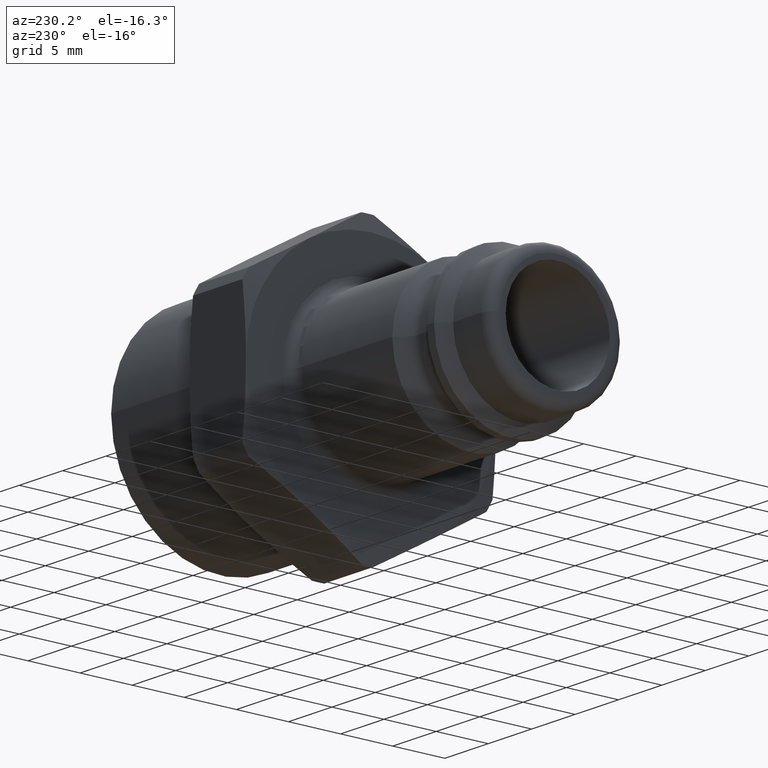
[diagram: clean part render]
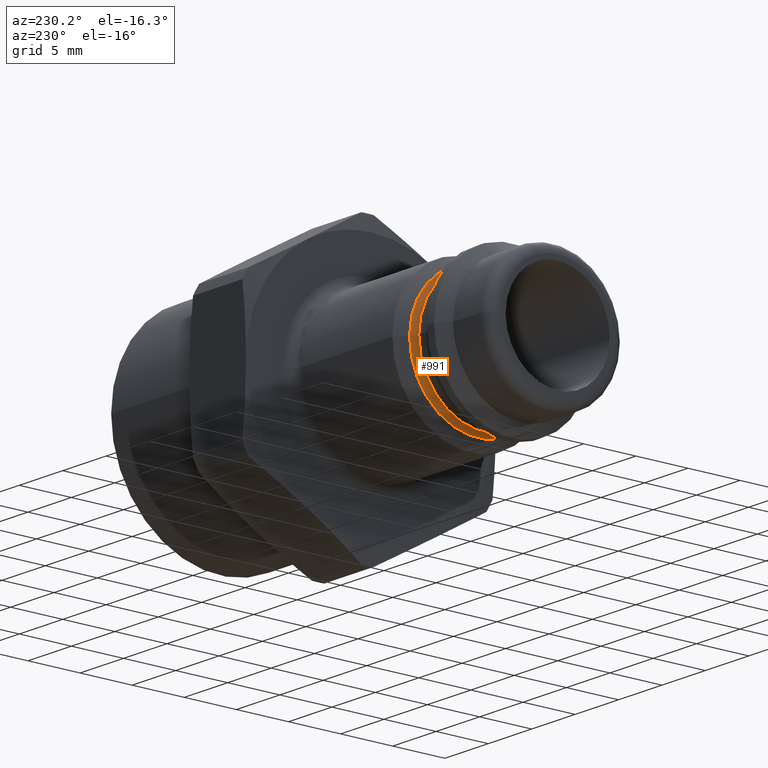
[diagram: same view with one face highlighted and labeled with its STEP entity id]
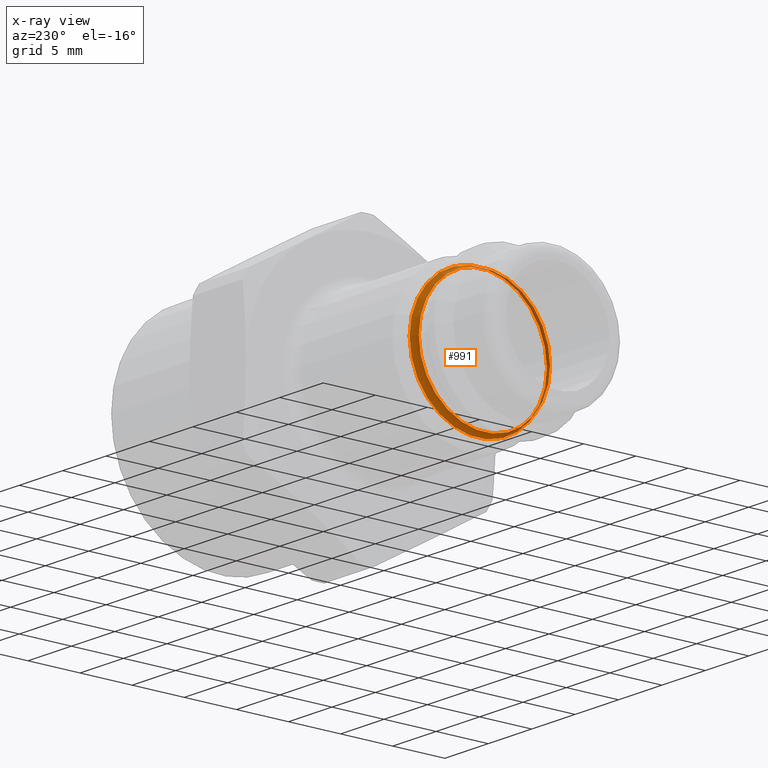
[diagram: x-ray of the same camera — body ghosted, the highlighted face saturated]
A machine part, auxiliary view. The second image highlights one B-rep face of the part: STEP entity #991.
The next image is the same camera in x-ray: the body ghosted, the highlighted face saturated — about 6% of this face is hidden behind the body in this view.
In plain terms, the highlighted toroidal blend (fillet) surface has major radius 7.3 mm and minor (blend) radius 1 mm.
Its self-contained STEP definition (entity closure, byte-faithful):
#964=CARTESIAN_POINT('',(8.435786437626909,0.0,0.0));
#965=DIRECTION('',(1.0,0.0,0.0));
#966=DIRECTION('',(0.0,0.0,-1.0));
#967=AXIS2_PLACEMENT_3D('',#964,#965,#966);
#968=TOROIDAL_SURFACE('',#967,7.300000000000001,1.0);
#969=CARTESIAN_POINT('',(8.435786437626909,6.300000000000001,0.0));
#970=VERTEX_POINT('',#969);
#971=CARTESIAN_POINT('',(8.435786437626909,0.0,0.0));
#972=DIRECTION('',(1.0,0.0,0.0));
#973=DIRECTION('',(0.0,-1.0,0.0));
#974=AXIS2_PLACEMENT_3D('',#971,#972,#973);
#975=CIRCLE('',#974,6.300000000000001);
#976=EDGE_CURVE('',#970,#970,#975,.T.);
#977=ORIENTED_EDGE('',*,*,#976,.T.);
#978=EDGE_LOOP('',(#977));
#979=FACE_OUTER_BOUND('',#978,.T.);
#980=CARTESIAN_POINT('',(9.142893218813457,6.592893218813454,-1.614793E-015));
#981=VERTEX_POINT('',#980);
#982=CARTESIAN_POINT('',(9.142893218813457,0.0,-8.073966E-016));
#983=DIRECTION('',(-1.0,0.0,0.0));
#984=DIRECTION('',(0.0,-1.0,0.0));
#985=AXIS2_PLACEMENT_3D('',#982,#983,#984);
#986=CIRCLE('',#985,6.592893218813454);
#987=EDGE_CURVE('',#981,#981,#986,.T.);
#988=ORIENTED_EDGE('',*,*,#987,.T.);
#989=EDGE_LOOP('',(#988));
#990=FACE_BOUND('',#989,.T.);
#991=ADVANCED_FACE('',(#979,#990),#968,.F.);